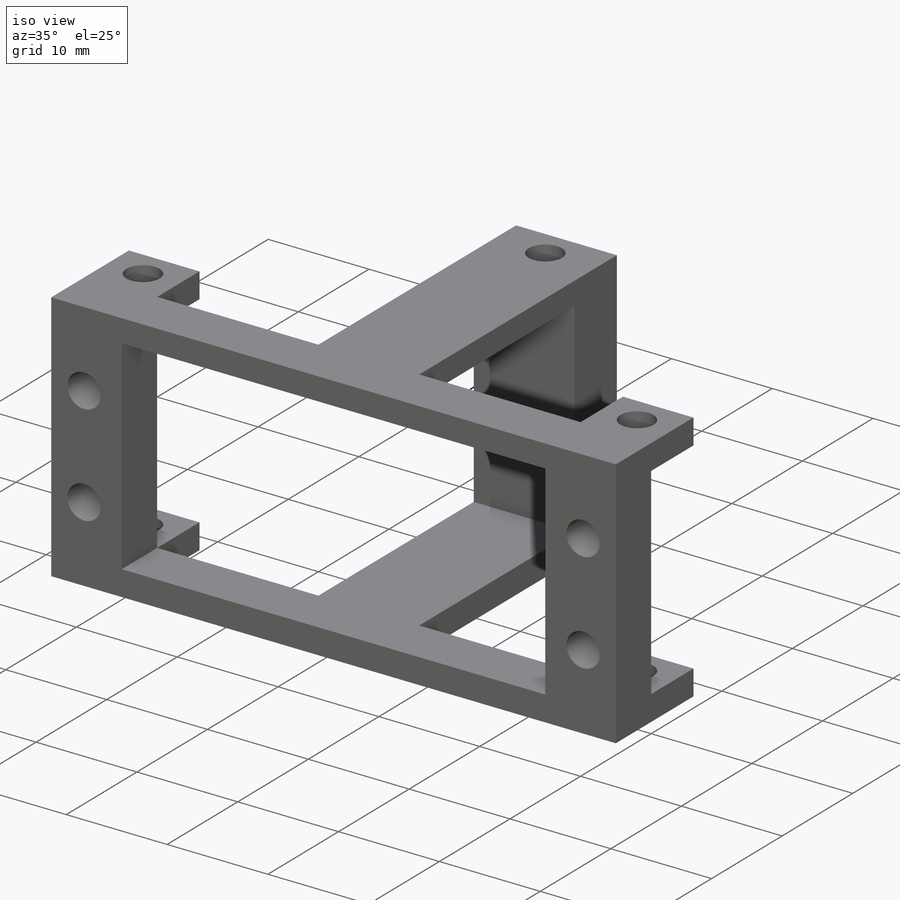
[diagram: iso view]
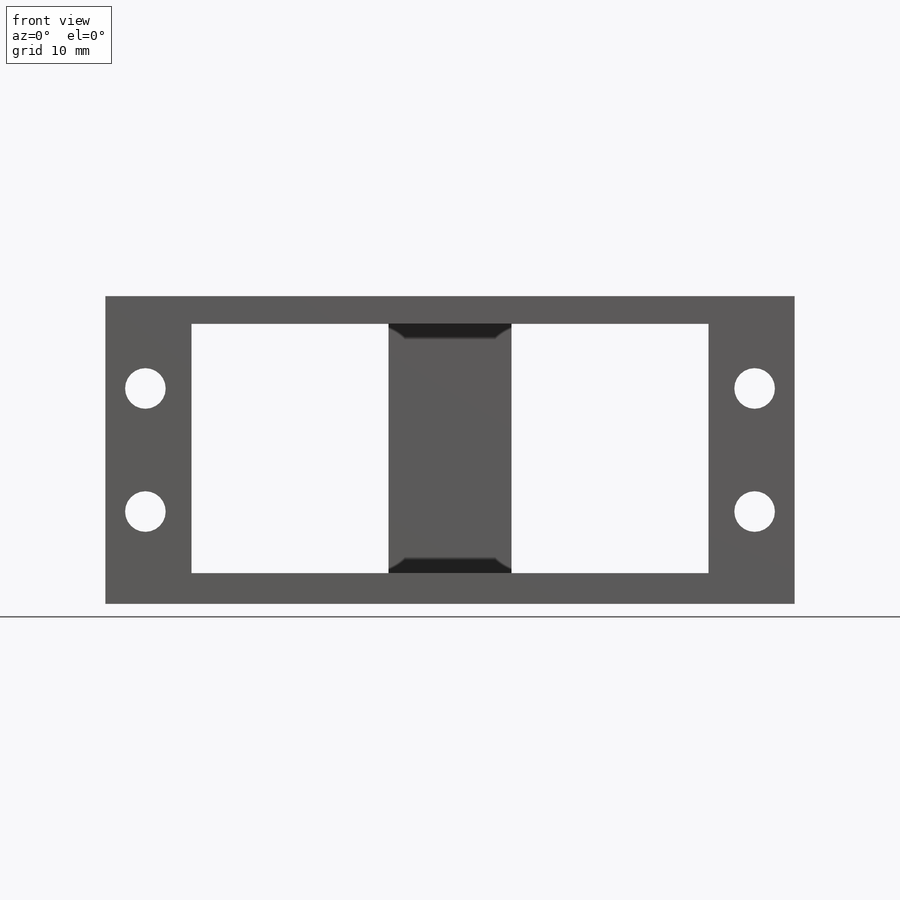
[diagram: front view]
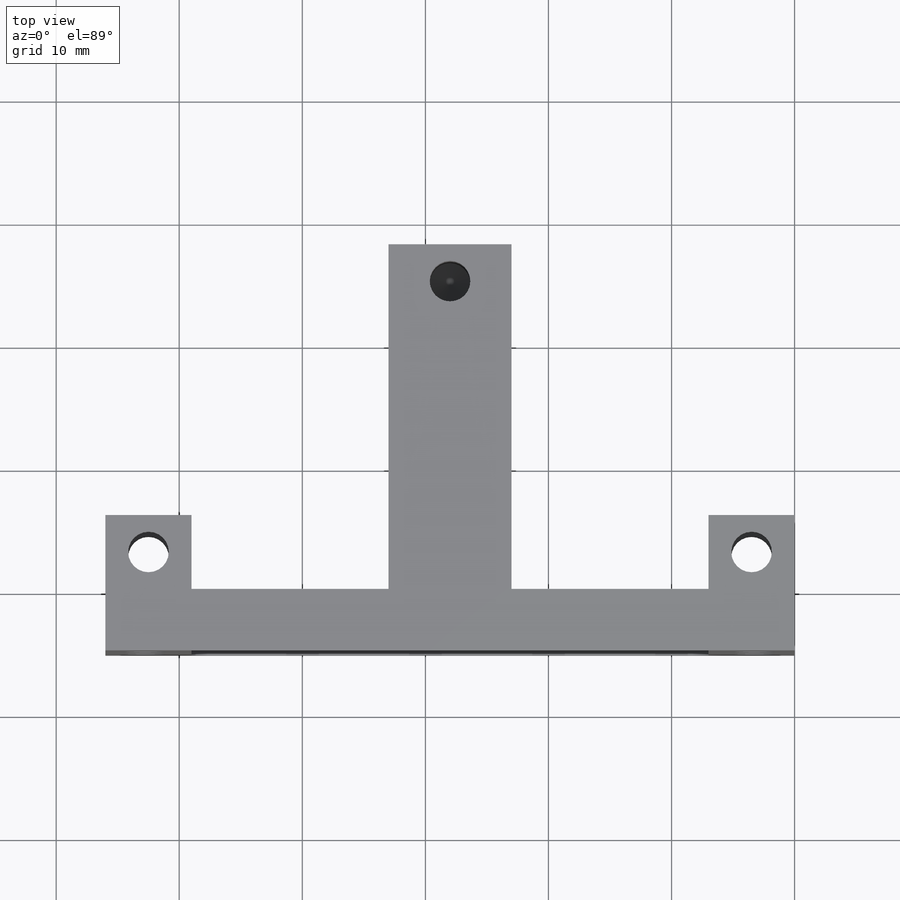
[diagram: top view]
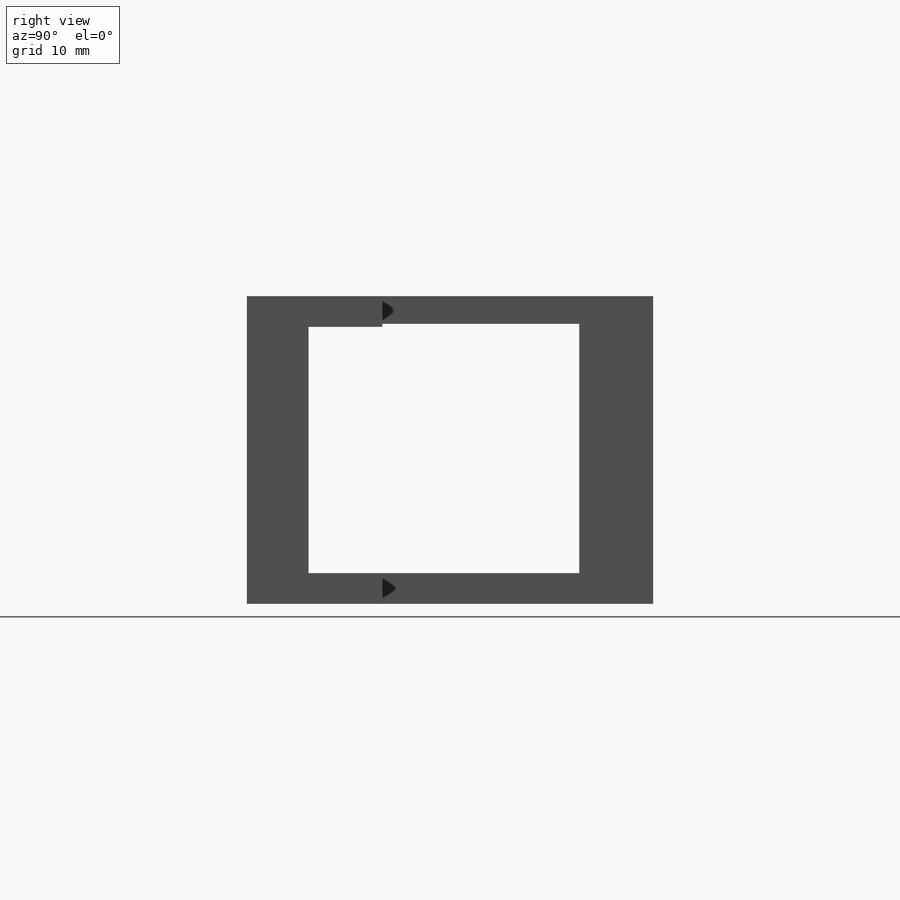
[diagram: right view]
SOLIDWORKS PART (.sldprt)
format: sldprt  version: not decoded by parser v0  size: 434,688 bytes
history: native  units: mm
features: sketch x6, thread x4, extrude x2, hole x2, material x1, plane x1 (+15 scaffold rows collapsed)
feature tree (31):
  scaffold x15  (default folders/planes/origin — collapsed)
  material  "1060 Alloy"
  sketch  "Sketch1"  dims[c1.D1=2.5mm c1.D2=7.25mm c1.D3=20.0mm c1.D4=18.0mm c2.D3=42.0mm c2.D1=1.5mm c2.D2=7.0mm c2.D5=7.0mm c2.D6=1.25mm]
  extrude  "Extrude1"  Depth=8mm
  plane  "Plane1"  Offset=27mm
  hole  "M4x0.7 Tapped Hole1"  Diameter=3.3mm Depth=8mm
  sketch  "3DSketch1"  dims[c1.D1=~3.068063mm c1.D2=3.0mm c2.D2=~1.58671mm c2.D6=3.0mm c2.D3=~9.928067mm c2.D9=10.0mm c2.D4=~9.514737mm c2.D1=6.5mm c2.D5=7.5mm c3.D3=6.5mm c3.D6=~3.203955mm c3.D8=3.0mm c3.D7=10.0mm c4.D8=~2.604682mm c4.D9=3.0mm c5.D8=4.0mm c5.D9=3.0mm c5.D1=50.0mm c5.D3=49.5mm c5.D2=49.5mm c6.D1=49.5mm c6.D6=~2.411792mm c6.D9=2.25mm c6.D8=2.25mm c7.D9=2.25mm c7.D6=3.75mm c7.D1=3.75mm c7.D8=3.75mm c8.D1=3.75mm c9.D1=3.75mm c9.D2=4.0mm c9.D3=4.0mm]
  sketch  "Sketch6"  dims[hole-wizard template sketch: 60 standard entries collapsed; hole parameters kept: c18.Thru Tap Drill Depth=8.0mm]
  thread  "Hole Thread1"  Diameter=13.3mm  [1 undecoded]
  thread  "Hole Thread2"  Diameter=13.3mm  [1 undecoded]
  sketch  "Sketch7"  dims[D1=2.5mm D2=2.5mm D3=2.5mm D4=2.5mm]
  extrude  "Extrude5"  Depth=6mm
  hole  "M4x0.7 Tapped Hole2"  Diameter=3.3mm Depth=10.3mm
  sketch  "3DSketch2"  dims[c1.D1=2.8516mm c1.D7=3.0mm c1.D2=~4.538526mm c2.D1=5.0mm c2.D3=3.0mm c2.D4=3.5mm c2.D5=~3.088943mm c3.D1=3.5mm c3.D6=~2.709708mm c4.D1=3.0mm]
  sketch  "Sketch8"  dims[hole-wizard template sketch: 50 standard entries collapsed; hole parameters above]
  thread  "Hole Thread3"  Diameter=13.3mm  [1 undecoded]
  thread  "Hole Thread4"  Diameter=13.3mm  [1 undecoded]
decode coverage: 14 of 14 modeling features carry decoded parameters
note: ~ marks probable driven/reference dimensions
note: 4 parameter values undecoded
note: suppression state not decoded; provenance and decode notes live in map.json
